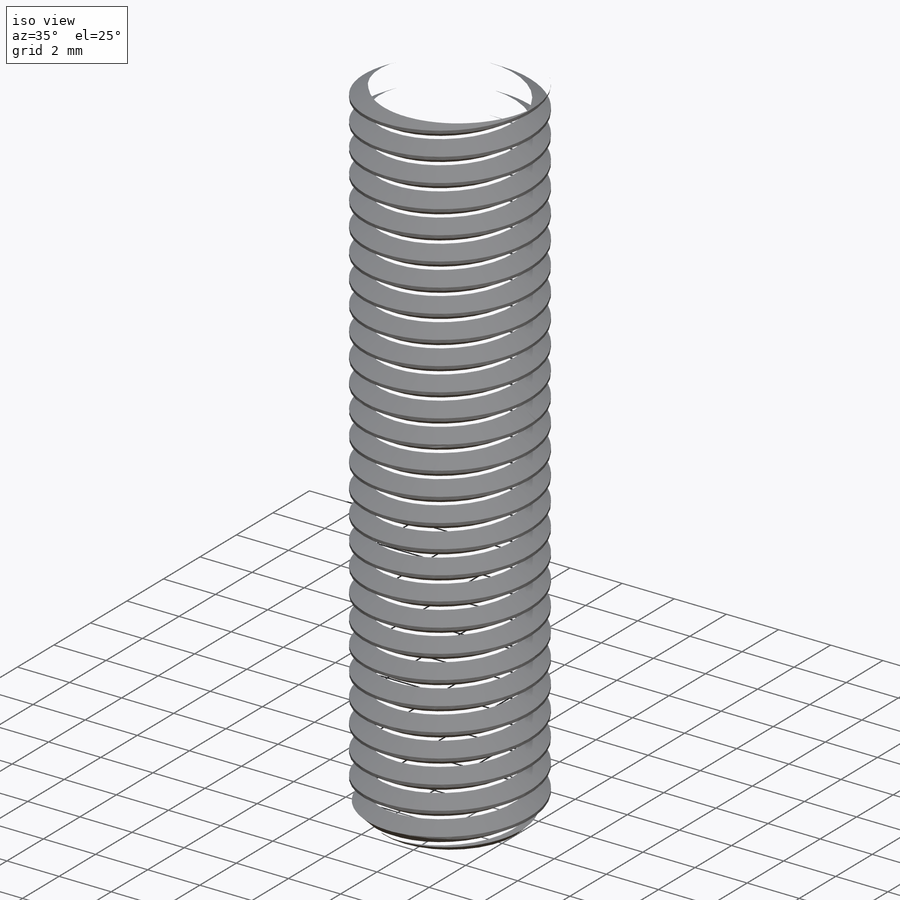
[diagram: iso view]
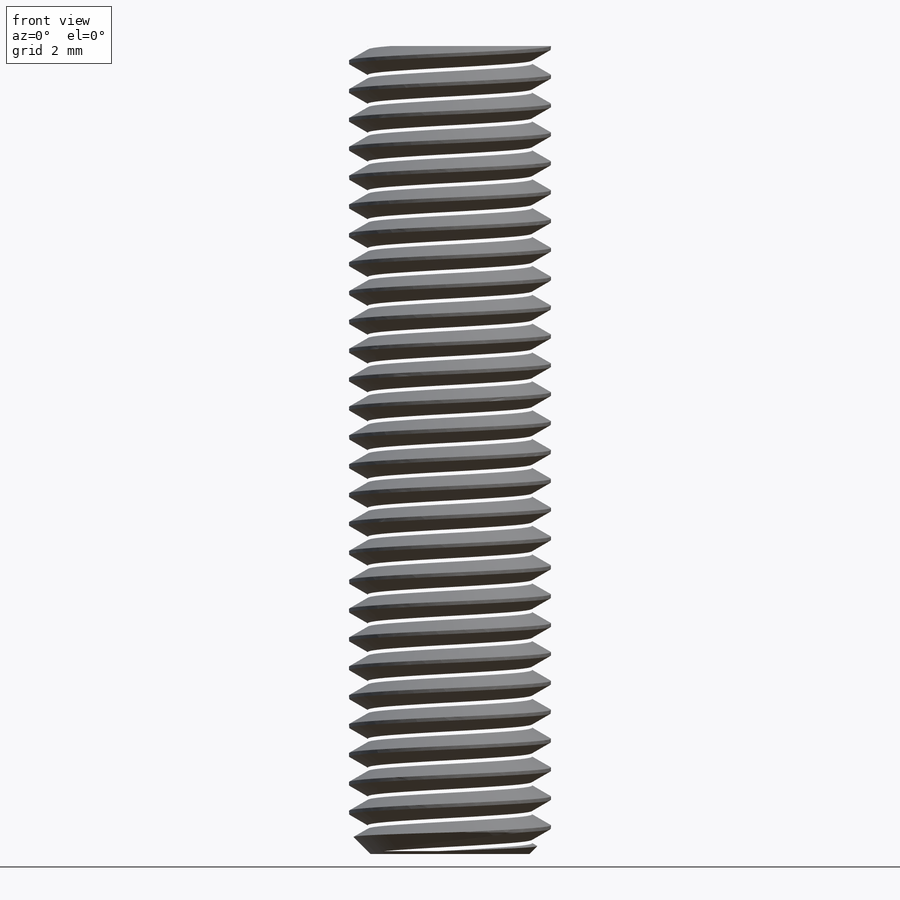
[diagram: front view]
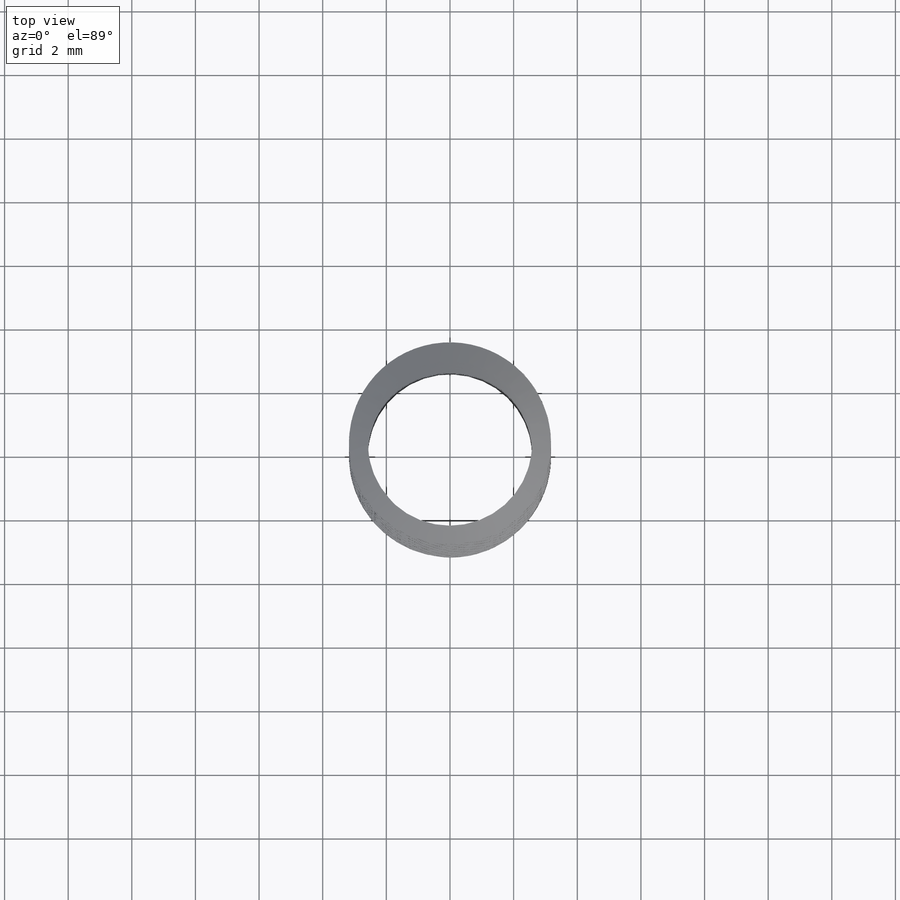
[diagram: top view]
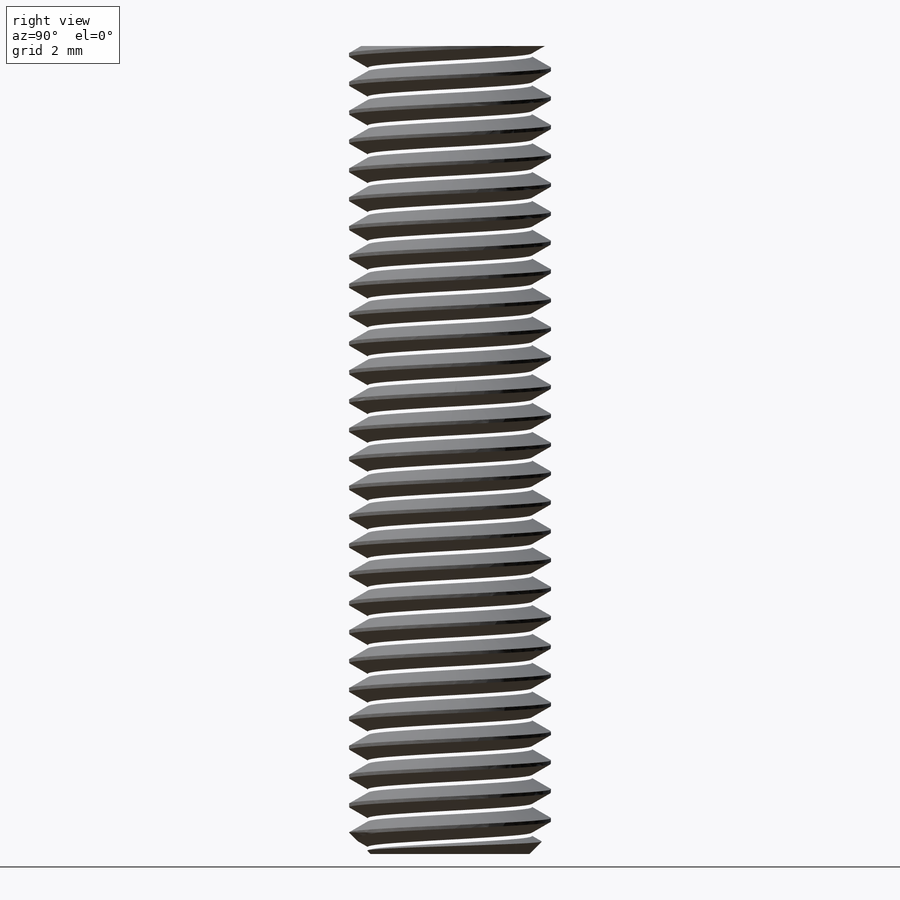
[diagram: right view]
SOLIDWORKS PART (.sldprt)
format: sldprt  version: not decoded by parser v0  size: 1,773,056 bytes
history: native  units: mm
features: sketch x17, revolve x6, cut_extrude x5, chamfer x3, helix x2, sweep x2, material x1, plane x1, extrude x1 (+14 scaffold rows collapsed)
feature tree (52):
  scaffold x14  (default folders/planes/origin — collapsed)
  material  "Material <not specified>"
  sketch  "Sketch1"  dims[A=6.35mm Ball Dia=12.7mm B=19.05mm D=39.6875mm E=25.4mm Thread Dia=6.35mm]
  revolve  "Revolve1"  Angle=360deg
  chamfer  "Chamfer2"  Distance=0.680357mm Angle=45deg
  sketch  "Sketch21"  dims[D1=0.0mm]
  helix  "Helix/Spiral1"  Pitch=29.2608mm Thread Pitch=0.907143mm
  sketch  "Sketch22"  dims[c1.D1=~0.453571mm c1.D2=~0.113393mm c1.D3=~1.396775mm c2.D3=60.0deg]
  sweep  "Cut-Sweep1"
  sketch  "Sketch4"  dims[D1=2.54mm]
  revolve  "Revolve2"  Angle=360deg
  sketch  "Sketch5"  dims[c1.F=7.1374mm c1.D2=~11.456971mm c2.D2=35.0deg c3.D2=~141.62799mm c4.D2=35.0deg c5.D2=~1.42748mm c5.D1=6.35mm]
  cut_extrude  "Cut-Extrude1"  [1 undecoded]
  sketch  "Sketch7"
  revolve  "Revolve3"  Angle=360deg
  sketch  "Sketch8"  dims[C=9.525mm]
  cut_extrude  "Cut-Extrude3"  [1 undecoded]
  sketch  "Sketch10"
  cut_extrude  "Cut-Extrude4"  [1 undecoded]
  chamfer  "Chamfer1"  Distance=0.3175mm Angle=45deg
  sketch  "Sketch12"  dims[L Length=26.1874mm S Thread Length=12.7mm P Length=14.2748mm D1=9.525mm]
  revolve  "Revolve4"  Angle=360deg
  chamfer  "Chamfer3"  Distance=0.680357mm Angle=45deg
  sketch  "Sketch23"  dims[D1=0.0mm]
  helix  "Helix/Spiral2"  Pitch=15.875mm Thread Pitch=0.907143mm
  sketch  "Sketch24"  dims[c1.D1=~4.456474mm c2.D1=60.0deg c2.D2=~0.453571mm c2.D3=~0.113393mm]
  sweep  "Cut-Sweep2"
  sketch  "Sketch15"
  revolve  "Revolve5"  Angle=360deg
  plane  "Plane1"
  sketch  "Sketch16"  dims[D1=6.985mm]
  extrude  "Extrude1"  Depth=4.535714mm
  sketch  "Sketch17"
  cut_extrude  "Cut-Extrude5"  [1 undecoded]
  sketch  "Sketch18"
  cut_extrude  "Cut-Extrude6"  [1 undecoded]
  sketch  "Sketch20"  dims[c1.D1=0.127mm c1.D2=~5.054599mm c2.D2=~304.881535deg c3.D2=~5.054599mm c4.D2=45.0deg]
  revolve  "Revolve6"  Angle=360deg
  sketch  "Sketch11"  dims[c1.D1=2.54mm c1.D2=~3.69202mm c1.Swivel=50.0deg c2.D1=1.524mm c2.D2=0.508mm]
decode coverage: 24 of 36 modeling features carry decoded parameters
note: ~ marks probable driven/reference dimensions
note: 5 parameter values undecoded
summary: no parameter record found for 5 features
note: suppression state not decoded; provenance and decode notes live in map.json
